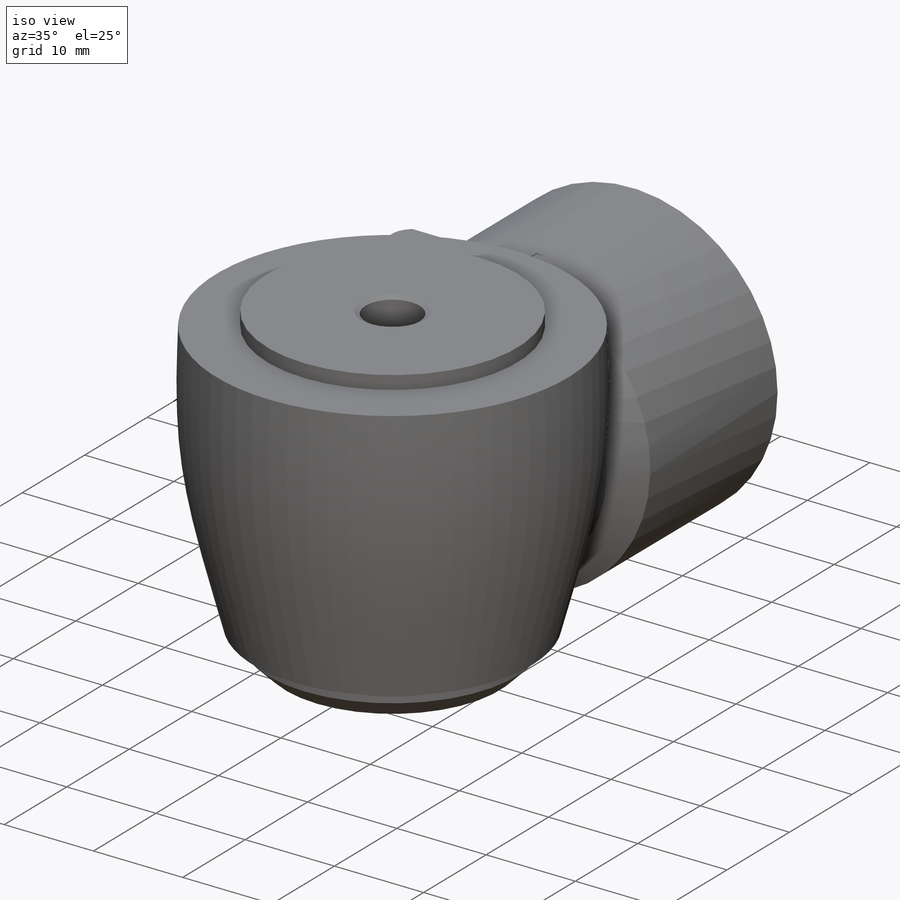
[diagram: iso view]
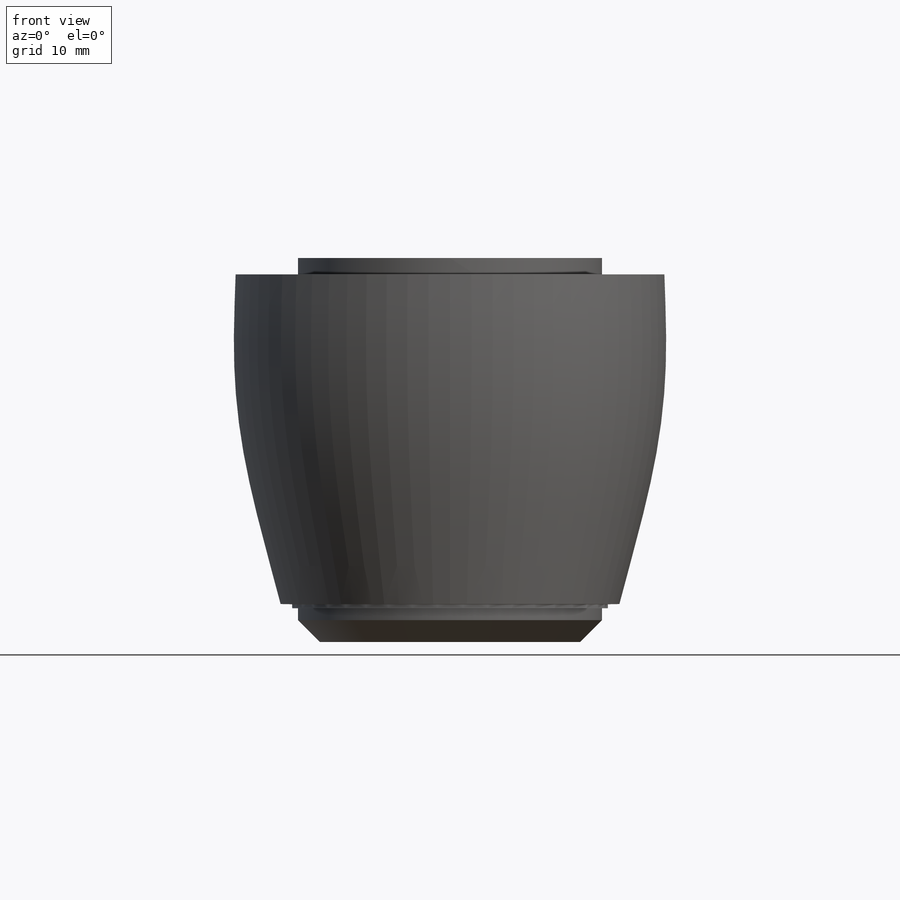
[diagram: front view]
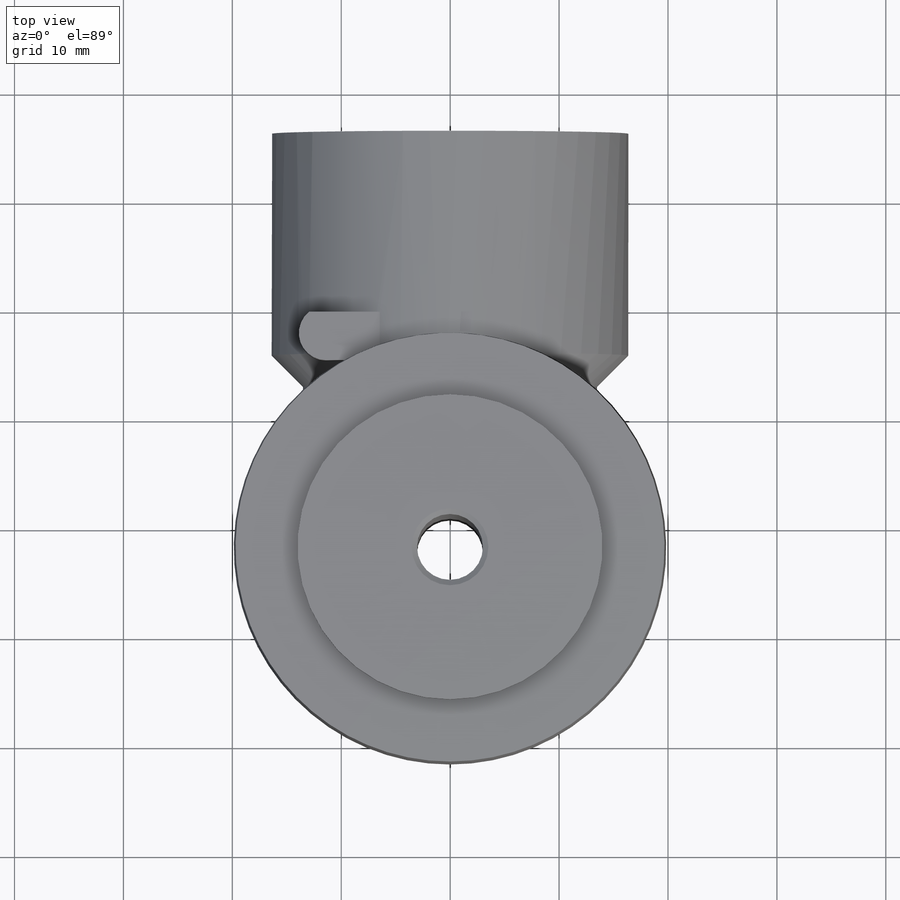
[diagram: top view]
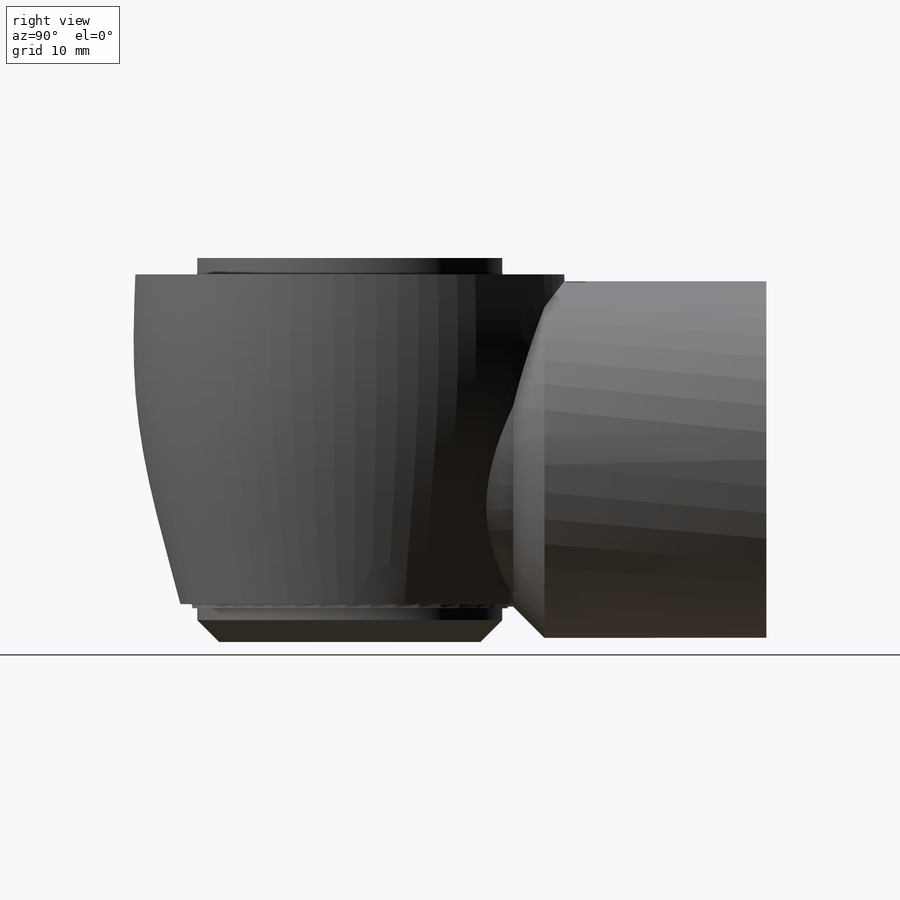
[diagram: right view]
SOLIDWORKS PART (.sldprt)
format: sldprt  version: not decoded by parser v0  size: 594,944 bytes
history: native  units: mm
features: sketch x16, cut_extrude x8, plane x4, chamfer x4, extrude x4, sweep x2, fillet x2, material x1, mirror x1, pattern_circular x1 (+10 scaffold rows collapsed)
feature tree (53):
  scaffold x10  (default folders/planes/origin — collapsed)
  material  "Materiał <nieokreślony>"
  plane  "Płaszczyzna przednia"
  plane  "Płaszczyzna górna"
  plane  "Płaszczyzna prawa"
  plane  "Płaszczyzna4"
  sketch  "Szkic1"
  cut_extrude  "Wytnij-wyciągnięcie1"  Depth=1mm
  mirror  "Lustro1"
  sketch  "Szkic2"  dims[D1=1.0mm]
  cut_extrude  "Wytnij-wyciągnięcie3"  Depth=5.1mm
  sketch  "Szkic3"  dims[D1=1.0mm]
  cut_extrude  "Wytnij-wyciągnięcie4"  Depth=1.5mm
  sketch  "Szkic4"  dims[D1=6.05mm]
  cut_extrude  "Wytnij-wyciągnięcie5"  [1 undecoded]
  chamfer  "Sfazowanie1"  Distance=0.5mm Angle=30deg
  sketch  "Szkic5"
  extrude  "Dodanie-wyciągnięcie1"  Depth=1mm
  sketch  "Szkic6"
  cut_extrude  "Wytnij-wyciągnięcie6"  Depth=14mm
  sketch  "Szkic7"  dims[D1=5.0mm D2=3.0mm]
  cut_extrude  "Wytnij-wyciągnięcie7"  Depth=10mm
  sketch  "Szkic8"  dims[D1=~2.445876mm]
  sketch  "Szkic9"
  sketch  "Szkic10"  dims[D1=5.0mm]
  sweep  "Wycięcie-wyciągnięcie po ścieżce1"
  sketch  "Szkic11"  dims[c1.D1=~7.487615mm c2.D1=45.0deg]
  sweep  "Wycięcie-wyciągnięcie po ścieżce2"
  fillet  "Zaokrąglenie1"  Radius=1mm
  fillet  "Zaokrąglenie2"  Radius=1mm
  sketch  "Szkic12"  dims[c1.D1=~2.481603mm c2.D1=~10.244292deg c3.D1=4.6mm]
  cut_extrude  "Wytnij-wyciągnięcie8"  Depth=0.2mm
  pattern_circular  "Szyk kołowy1"  Count=2 Angle=360deg
  sketch  "Szkic13"  dims[D1=0.5mm]
  extrude  "Dodanie-wyciągnięcie2"  [1 undecoded]
  sketch  "Szkic14"  dims[D1=0.5mm]
  extrude  "Dodanie-wyciągnięcie3"  [1 undecoded]
  sketch  "Szkic15"  dims[D1=0.0mm]
  extrude  "Dodanie-wyciągnięcie4"  [1 undecoded]
  sketch  "Szkic16"  dims[D1=0.0mm]
  cut_extrude  "Wytnij-wyciągnięcie9"  Depth=2mm
  chamfer  "Sfazowanie2"  Distance=2mm Angle=45deg
  chamfer  "Sfazowanie4"  Distance=2mm Angle=45deg
  chamfer  "Sfazowanie5"  Distance=2mm Angle=45deg
decode coverage: 27 of 38 modeling features carry decoded parameters
note: ~ marks probable driven/reference dimensions
note: 4 parameter values undecoded
summary: no parameter record found for 4 features
note: suppression state not decoded; provenance and decode notes live in map.json
